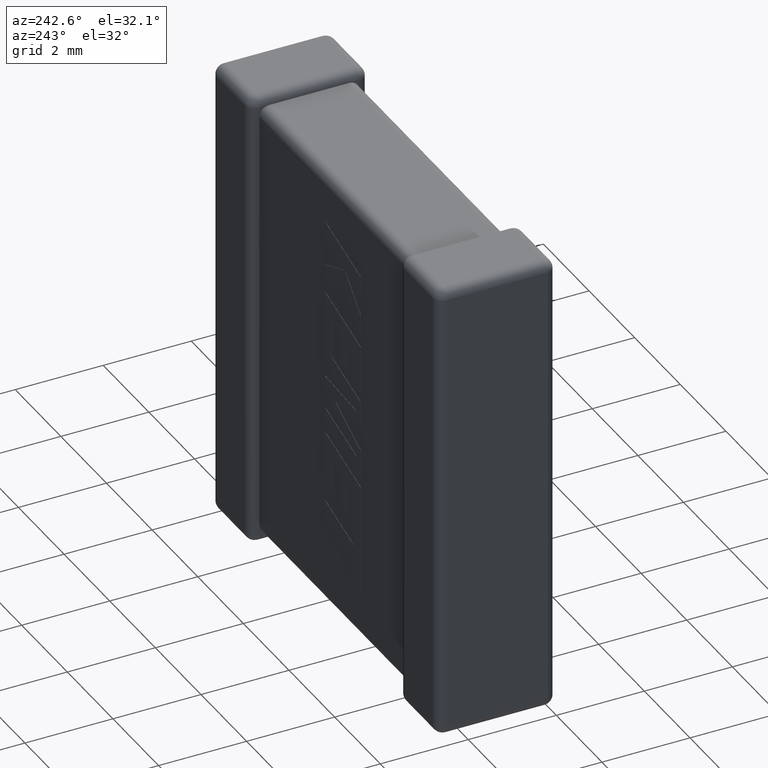
[diagram: clean part render]
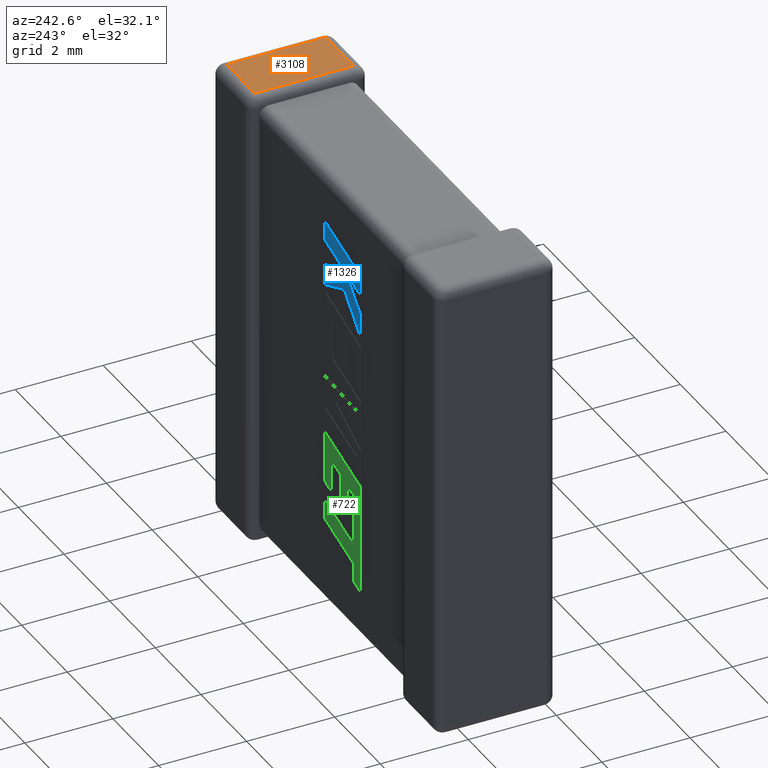
[diagram: same view with three faces highlighted in distinct colors, each labeled with its STEP entity id]
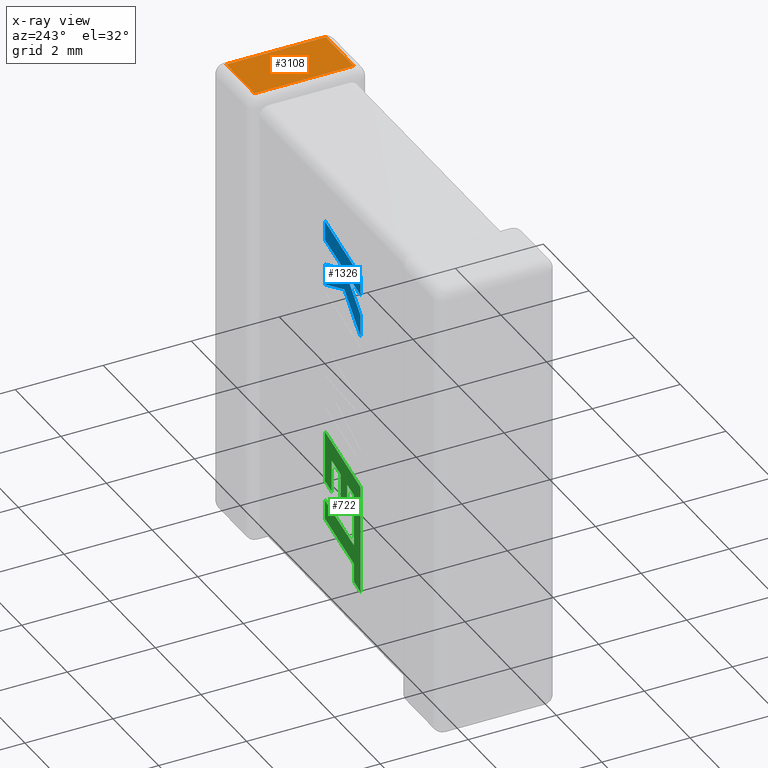
[diagram: x-ray of the same camera — body ghosted, the three highlighted faces saturated]
A machine part, auxiliary view with three faces highlighted in distinct colors.
The next image is the same camera in x-ray (body ghosted, the three faces saturated) — at least one of them is partly hidden behind the body in this view.
Their STEP definitions:

[orange] entity #3108 — the highlighted planar face has unit normal (0, 0, -1).
#343 = CARTESIAN_POINT ( 'NONE',  ( 9.679520000000000124, 0.000000000000000000, 0.000000000000000000 ) ) ;
#392 = VERTEX_POINT ( 'NONE', #2005 ) ;
#514 = ORIENTED_EDGE ( 'NONE', *, *, #2929, .T. ) ;
#691 = ORIENTED_EDGE ( 'NONE', *, *, #2475, .T. ) ;
#718 = LINE ( 'NONE', #1775, #1203 ) ;
#741 = CARTESIAN_POINT ( 'NONE',  ( 8.450480000000000658, 2.479520000000000390, 0.000000000000000000 ) ) ;
#1058 = ORIENTED_EDGE ( 'NONE', *, *, #2239, .T. ) ;
#1203 = VECTOR ( 'NONE', #3498, 1000.000000000000000 ) ;
#1226 = CARTESIAN_POINT ( 'NONE',  ( 9.900000000000000355, 0.2204799999999999538, 0.000000000000000000 ) ) ;
#1255 = ORIENTED_EDGE ( 'NONE', *, *, #2166, .T. ) ;
#1374 = DIRECTION ( 'NONE',  ( -1.000000000000000000, 0.000000000000000000, -0.000000000000000000 ) ) ;
#1405 = VERTEX_POINT ( 'NONE', #2473 ) ;
#1732 = PLANE ( 'NONE',  #1733 ) ;
#1733 = AXIS2_PLACEMENT_3D ( 'NONE', #3927, #1799, #1374 ) ;
#1775 = CARTESIAN_POINT ( 'NONE',  ( 8.450480000000000658, 0.000000000000000000, 0.000000000000000000 ) ) ;
#1799 = DIRECTION ( 'NONE',  ( 0.000000000000000000, 0.000000000000000000, -1.000000000000000000 ) ) ;
#1983 = CARTESIAN_POINT ( 'NONE',  ( 8.450480000000000658, 0.2204799999999999538, 0.000000000000000000 ) ) ;
#2005 = CARTESIAN_POINT ( 'NONE',  ( 9.679520000000000124, 2.479520000000000390, 0.000000000000000000 ) ) ;
#2151 = LINE ( 'NONE', #343, #2252 ) ;
#2166 = EDGE_CURVE ( 'NONE', #1405, #392, #2151, .T. ) ;
#2212 = VERTEX_POINT ( 'NONE', #741 ) ;
#2239 = EDGE_CURVE ( 'NONE', #2212, #2721, #718, .T. ) ;
#2252 = VECTOR ( 'NONE', #4519, 1000.000000000000000 ) ;
#2473 = CARTESIAN_POINT ( 'NONE',  ( 9.679520000000000124, 0.2204799999999999538, 0.000000000000000000 ) ) ;
#2475 = EDGE_CURVE ( 'NONE', #2721, #1405, #4394, .T. ) ;
#2510 = CARTESIAN_POINT ( 'NONE',  ( 9.900000000000000355, 2.479520000000000390, 0.000000000000000000 ) ) ;
#2600 = DIRECTION ( 'NONE',  ( -1.000000000000000000, 0.000000000000000000, 0.000000000000000000 ) ) ;
#2721 = VERTEX_POINT ( 'NONE', #1983 ) ;
#2731 = DIRECTION ( 'NONE',  ( 1.000000000000000000, -0.000000000000000000, -0.000000000000000000 ) ) ;
#2929 = EDGE_CURVE ( 'NONE', #392, #2212, #3934, .T. ) ;
#3108 = ADVANCED_FACE ( 'NONE', ( #3563 ), #1732, .F. ) ;
#3359 = VECTOR ( 'NONE', #2600, 1000.000000000000000 ) ;
#3498 = DIRECTION ( 'NONE',  ( -0.000000000000000000, -1.000000000000000000, -0.000000000000000000 ) ) ;
#3563 = FACE_OUTER_BOUND ( 'NONE', #3976, .T. ) ;
#3927 = CARTESIAN_POINT ( 'NONE',  ( 9.900000000000000355, 0.000000000000000000, 0.000000000000000000 ) ) ;
#3934 = LINE ( 'NONE', #2510, #3359 ) ;
#3976 = EDGE_LOOP ( 'NONE', ( #1058, #691, #1255, #514 ) ) ;
#4394 = LINE ( 'NONE', #1226, #4453 ) ;
#4453 = VECTOR ( 'NONE', #2731, 1000.000000000000000 ) ;
#4519 = DIRECTION ( 'NONE',  ( -0.000000000000000000, 1.000000000000000000, -0.000000000000000000 ) ) ;

[blue] entity #1326 — the highlighted planar face has unit normal (0, -1, 0).
#163 = ORIENTED_EDGE ( 'NONE', *, *, #853, .T. ) ;
#294 = CARTESIAN_POINT ( 'NONE',  ( 5.346000000000001862, 2.484519999999999840, -1.324999999999999956 ) ) ;
#321 = CARTESIAN_POINT ( 'NONE',  ( -5.111707589332566748, 2.484519999999999396, 0.02398527024839659794 ) ) ;
#382 = VECTOR ( 'NONE', #572, 1000.000000000000000 ) ;
#477 = LINE ( 'NONE', #2896, #740 ) ;
#521 = VERTEX_POINT ( 'NONE', #4059 ) ;
#524 = CARTESIAN_POINT ( 'NONE',  ( 4.499875972917930511, 2.484519999999999840, -2.010630823879264284 ) ) ;
#572 = DIRECTION ( 'NONE',  ( 5.943634068010692500E-14, 0.000000000000000000, -1.000000000000000000 ) ) ;
#650 = ORIENTED_EDGE ( 'NONE', *, *, #4068, .T. ) ;
#740 = VECTOR ( 'NONE', #1482, 1000.000000000000000 ) ;
#758 = ORIENTED_EDGE ( 'NONE', *, *, #4373, .T. ) ;
#853 = EDGE_CURVE ( 'NONE', #2395, #2823, #988, .T. ) ;
#919 = VECTOR ( 'NONE', #3038, 1000.000000000000114 ) ;
#986 = PLANE ( 'NONE',  #4497 ) ;
#988 = LINE ( 'NONE', #3023, #3253 ) ;
#1005 = VERTEX_POINT ( 'NONE', #2525 ) ;
#1070 = EDGE_CURVE ( 'NONE', #1005, #3388, #477, .T. ) ;
#1223 = VERTEX_POINT ( 'NONE', #1230 ) ;
#1230 = CARTESIAN_POINT ( 'NONE',  ( 5.346000000000001862, 2.484519999999999840, -1.324999999999999956 ) ) ;
#1242 = ORIENTED_EDGE ( 'NONE', *, *, #3431, .T. ) ;
#1276 = CARTESIAN_POINT ( 'NONE',  ( 4.452209416119982777, 2.484519999999999840, -2.026053751802103786 ) ) ;
#1287 = ORIENTED_EDGE ( 'NONE', *, *, #3542, .T. ) ;
#1326 = ADVANCED_FACE ( 'NONE', ( #4565 ), #986, .F. ) ;
#1395 = ORIENTED_EDGE ( 'NONE', *, *, #1865, .T. ) ;
#1400 = VECTOR ( 'NONE', #2840, 1000.000000000000114 ) ;
#1482 = DIRECTION ( 'NONE',  ( 0.000000000000000000, 0.000000000000000000, -1.000000000000000000 ) ) ;
#1524 = VERTEX_POINT ( 'NONE', #3350 ) ;
#1532 = CARTESIAN_POINT ( 'NONE',  ( 4.452209416119982777, 2.484519999999999840, -2.026053751802103786 ) ) ;
#1564 = ORIENTED_EDGE ( 'NONE', *, *, #2190, .T. ) ;
#1687 = VERTEX_POINT ( 'NONE', #4489 ) ;
#1731 = LINE ( 'NONE', #3860, #3225 ) ;
#1754 = DIRECTION ( 'NONE',  ( 0.000000000000000000, 0.000000000000000000, -1.000000000000000000 ) ) ;
#1765 = CARTESIAN_POINT ( 'NONE',  ( 3.787682651030821468, 2.484519999999999840, -2.216539926370781899 ) ) ;
#1776 = VECTOR ( 'NONE', #3480, 1000.000000000000000 ) ;
#1794 = DIRECTION ( 'NONE',  ( -0.9237839814038673047, 0.000000000000000000, 0.3829140317376986680 ) ) ;
#1865 = EDGE_CURVE ( 'NONE', #2823, #1687, #2318, .T. ) ;
#1970 = CARTESIAN_POINT ( 'NONE',  ( 5.346000000000030283, 2.484519999999999840, -1.768114186081184425 ) ) ;
#2000 = CARTESIAN_POINT ( 'NONE',  ( 3.787682651030821468, 2.484519999999999840, -2.688325121172840504 ) ) ;
#2063 = CARTESIAN_POINT ( 'NONE',  ( 5.346000000000030283, 2.484519999999999840, -2.824406979866518341 ) ) ;
#2098 = VERTEX_POINT ( 'NONE', #1970 ) ;
#2179 = ORIENTED_EDGE ( 'NONE', *, *, #4259, .T. ) ;
#2190 = EDGE_CURVE ( 'NONE', #2489, #4477, #1731, .T. ) ;
#2254 = VECTOR ( 'NONE', #1794, 1000.000000000000114 ) ;
#2316 = DIRECTION ( 'NONE',  ( -0.9612861490927336883, 0.000000000000000000, -0.2755520632520511715 ) ) ;
#2318 = LINE ( 'NONE', #2790, #1776 ) ;
#2356 = DIRECTION ( 'NONE',  ( -0.9612934544747571142, 0.000000000000000000, -0.2755265765475047868 ) ) ;
#2395 = VERTEX_POINT ( 'NONE', #1532 ) ;
#2489 = VERTEX_POINT ( 'NONE', #2655 ) ;
#2492 = LINE ( 'NONE', #3898, #2254 ) ;
#2525 = CARTESIAN_POINT ( 'NONE',  ( 5.346000000000030283, 2.484519999999999840, -2.350262148356555336 ) ) ;
#2563 = ORIENTED_EDGE ( 'NONE', *, *, #3439, .T. ) ;
#2655 = CARTESIAN_POINT ( 'NONE',  ( 4.499875972917911859, 2.484519999999999840, -2.473683467571165195 ) ) ;
#2790 = CARTESIAN_POINT ( 'NONE',  ( 3.787682651030821468, 2.484519999999999840, -1.772833460748218126 ) ) ;
#2823 = VERTEX_POINT ( 'NONE', #1765 ) ;
#2840 = DIRECTION ( 'NONE',  ( 0.9280290862136694185, 0.000000000000000000, -0.3725077383644825324 ) ) ;
#2882 = LINE ( 'NONE', #4268, #1400 ) ;
#2894 = VECTOR ( 'NONE', #4450, 1000.000000000000000 ) ;
#2896 = CARTESIAN_POINT ( 'NONE',  ( 5.346000000000030283, 2.484519999999999840, -2.824406979866518341 ) ) ;
#3023 = CARTESIAN_POINT ( 'NONE',  ( 3.787682651030821468, 2.484519999999999840, -2.216539926370781899 ) ) ;
#3038 = DIRECTION ( 'NONE',  ( 0.7083077534944018927, 0.000000000000000000, 0.7059037656364454127 ) ) ;
#3205 = LINE ( 'NONE', #2000, #2894 ) ;
#3225 = VECTOR ( 'NONE', #3562, 1000.000000000000000 ) ;
#3253 = VECTOR ( 'NONE', #2316, 1000.000000000000227 ) ;
#3350 = CARTESIAN_POINT ( 'NONE',  ( 4.499875972917930511, 2.484519999999999840, -2.010630823879264284 ) ) ;
#3388 = VERTEX_POINT ( 'NONE', #2063 ) ;
#3431 = EDGE_CURVE ( 'NONE', #521, #2395, #4441, .T. ) ;
#3439 = EDGE_CURVE ( 'NONE', #1687, #1223, #4493, .T. ) ;
#3480 = DIRECTION ( 'NONE',  ( 0.000000000000000000, 0.000000000000000000, 1.000000000000000000 ) ) ;
#3542 = EDGE_CURVE ( 'NONE', #3388, #2489, #2492, .T. ) ;
#3562 = DIRECTION ( 'NONE',  ( -0.6995643972270459976, 0.000000000000000000, -0.7145695586381775044 ) ) ;
#3662 = VECTOR ( 'NONE', #3761, 1000.000000000000000 ) ;
#3700 = LINE ( 'NONE', #524, #3992 ) ;
#3761 = DIRECTION ( 'NONE',  ( 0.9610992334315860974, 0.000000000000000000, 0.2762033010252007426 ) ) ;
#3860 = CARTESIAN_POINT ( 'NONE',  ( 3.787682651030821468, 2.484519999999999840, -3.201152832368971524 ) ) ;
#3898 = CARTESIAN_POINT ( 'NONE',  ( 4.499875972917911859, 2.484519999999999840, -2.473683467571165195 ) ) ;
#3992 = VECTOR ( 'NONE', #2356, 1000.000000000000114 ) ;
#4059 = CARTESIAN_POINT ( 'NONE',  ( 3.787682651030821468, 2.484519999999999840, -2.688325121172840504 ) ) ;
#4068 = EDGE_CURVE ( 'NONE', #1524, #1005, #2882, .T. ) ;
#4071 = CARTESIAN_POINT ( 'NONE',  ( 5.346000000000030283, 2.484519999999999840, -1.768114186081184425 ) ) ;
#4075 = EDGE_LOOP ( 'NONE', ( #2563, #758, #4388, #650, #4251, #1287, #1564, #2179, #1242, #163, #1395 ) ) ;
#4188 = DIRECTION ( 'NONE',  ( 0.000000000000000000, -1.000000000000000000, 0.000000000000000000 ) ) ;
#4251 = ORIENTED_EDGE ( 'NONE', *, *, #1070, .T. ) ;
#4259 = EDGE_CURVE ( 'NONE', #4477, #521, #3205, .T. ) ;
#4268 = CARTESIAN_POINT ( 'NONE',  ( 5.346000000000030283, 2.484519999999999840, -2.350262148356555336 ) ) ;
#4304 = LINE ( 'NONE', #4071, #382 ) ;
#4373 = EDGE_CURVE ( 'NONE', #1223, #2098, #4304, .T. ) ;
#4388 = ORIENTED_EDGE ( 'NONE', *, *, #4457, .T. ) ;
#4438 = CARTESIAN_POINT ( 'NONE',  ( 3.787682651030821468, 2.484519999999999840, -3.201152832368971524 ) ) ;
#4441 = LINE ( 'NONE', #1276, #919 ) ;
#4450 = DIRECTION ( 'NONE',  ( 0.000000000000000000, 0.000000000000000000, 1.000000000000000000 ) ) ;
#4457 = EDGE_CURVE ( 'NONE', #2098, #1524, #3700, .T. ) ;
#4477 = VERTEX_POINT ( 'NONE', #4438 ) ;
#4489 = CARTESIAN_POINT ( 'NONE',  ( 3.787682651030821468, 2.484519999999999840, -1.772833460748218126 ) ) ;
#4493 = LINE ( 'NONE', #294, #3662 ) ;
#4497 = AXIS2_PLACEMENT_3D ( 'NONE', #321, #4188, #1754 ) ;
#4565 = FACE_OUTER_BOUND ( 'NONE', #4075, .T. ) ;

[green] entity #722 — the highlighted planar face has unit normal (0, 1, 0).
#35 = CARTESIAN_POINT ( 'NONE',  ( 4.374199257975709187, 2.484519999999999840, -7.721622180697617743 ) ) ;
#59 = VECTOR ( 'NONE', #4374, 1000.000000000000114 ) ;
#127 = VECTOR ( 'NONE', #3998, 1000.000000000000114 ) ;
#140 = CARTESIAN_POINT ( 'NONE',  ( 4.374199257975709187, 2.484519999999999840, -7.052878394175911225 ) ) ;
#165 = CARTESIAN_POINT ( 'NONE',  ( 5.346000000000030283, 2.484519999999999840, -7.963546540205231672 ) ) ;
#170 = DIRECTION ( 'NONE',  ( -0.9615825319869173438, 0.000000000000000000, -0.2745159998572559434 ) ) ;
#197 = ORIENTED_EDGE ( 'NONE', *, *, #1526, .T. ) ;
#270 = CARTESIAN_POINT ( 'NONE',  ( 4.374199257975709187, 2.484519999999999840, -7.721622180697617743 ) ) ;
#312 = CARTESIAN_POINT ( 'NONE',  ( 5.346000000000030283, 2.484519999999999840, -6.332184694268351954 ) ) ;
#414 = ORIENTED_EDGE ( 'NONE', *, *, #3404, .T. ) ;
#440 = VECTOR ( 'NONE', #3722, 1000.000000000000000 ) ;
#482 = VERTEX_POINT ( 'NONE', #2688 ) ;
#578 = EDGE_CURVE ( 'NONE', #3890, #3087, #1267, .T. ) ;
#608 = ORIENTED_EDGE ( 'NONE', *, *, #3240, .T. ) ;
#625 = CARTESIAN_POINT ( 'NONE',  ( 3.787682651030821468, 2.484519999999999840, -6.780411429052668026 ) ) ;
#689 = EDGE_CURVE ( 'NONE', #1610, #3834, #2904, .T. ) ;
#702 = ORIENTED_EDGE ( 'NONE', *, *, #1706, .T. ) ;
#722 = ADVANCED_FACE ( 'NONE', ( #1541 ), #835, .T. ) ;
#746 = EDGE_CURVE ( 'NONE', #3834, #3890, #4020, .T. ) ;
#750 = VECTOR ( 'NONE', #4216, 999.9999999999998863 ) ;
#759 = CARTESIAN_POINT ( 'NONE',  ( 4.086361485415988426, 2.484519999999999840, -7.851326388015599456 ) ) ;
#816 = ORIENTED_EDGE ( 'NONE', *, *, #689, .T. ) ;
#835 = PLANE ( 'NONE',  #1914 ) ;
#842 = ORIENTED_EDGE ( 'NONE', *, *, #1872, .T. ) ;
#876 = CARTESIAN_POINT ( 'NONE',  ( 4.088564760655455821, 2.484519999999999840, -8.325073208512909773 ) ) ;
#878 = EDGE_CURVE ( 'NONE', #2330, #2052, #4110, .T. ) ;
#890 = LINE ( 'NONE', #3062, #1846 ) ;
#915 = DIRECTION ( 'NONE',  ( -0.9620200793798762140, 0.000000000000000000, -0.2729786930695082825 ) ) ;
#933 = DIRECTION ( 'NONE',  ( -0.9610876102172832836, 0.000000000000000000, -0.2762437428917279836 ) ) ;
#939 = CARTESIAN_POINT ( 'NONE',  ( 3.787682651030821468, 2.484519999999999840, -6.780411429052668026 ) ) ;
#990 = EDGE_CURVE ( 'NONE', #3087, #1741, #2114, .T. ) ;
#1017 = CARTESIAN_POINT ( 'NONE',  ( 4.374199257975709187, 2.484519999999999840, -7.052878394175911225 ) ) ;
#1056 = LINE ( 'NONE', #2176, #750 ) ;
#1101 = EDGE_CURVE ( 'NONE', #3975, #482, #1560, .T. ) ;
#1112 = CARTESIAN_POINT ( 'NONE',  ( 4.662226559588931174, 2.484519999999999840, -7.639338142403540921 ) ) ;
#1128 = VECTOR ( 'NONE', #1658, 1000.000000000000114 ) ;
#1139 = LINE ( 'NONE', #4369, #3944 ) ;
#1151 = EDGE_CURVE ( 'NONE', #2569, #4325, #3332, .T. ) ;
#1170 = VECTOR ( 'NONE', #170, 1000.000000000000114 ) ;
#1234 = VECTOR ( 'NONE', #3751, 1000.000000000000000 ) ;
#1237 = LINE ( 'NONE', #2644, #2661 ) ;
#1267 = LINE ( 'NONE', #2324, #3109 ) ;
#1298 = LINE ( 'NONE', #625, #1128 ) ;
#1340 = CARTESIAN_POINT ( 'NONE',  ( 4.084352477455281516, 2.484519999999999840, -7.137218822693348841 ) ) ;
#1353 = VECTOR ( 'NONE', #2875, 1000.000000000000000 ) ;
#1457 = VECTOR ( 'NONE', #3308, 1000.000000000000000 ) ;
#1526 = EDGE_CURVE ( 'NONE', #2052, #1998, #3036, .T. ) ;
#1541 = FACE_OUTER_BOUND ( 'NONE', #3070, .T. ) ;
#1554 = VERTEX_POINT ( 'NONE', #939 ) ;
#1560 = LINE ( 'NONE', #2240, #1457 ) ;
#1565 = CARTESIAN_POINT ( 'NONE',  ( -5.111707589332566748, 2.484519999999999396, 0.02398527024839659794 ) ) ;
#1583 = EDGE_CURVE ( 'NONE', #482, #2330, #890, .T. ) ;
#1591 = EDGE_CURVE ( 'NONE', #1998, #2348, #2990, .T. ) ;
#1610 = VERTEX_POINT ( 'NONE', #4101 ) ;
#1644 = ORIENTED_EDGE ( 'NONE', *, *, #1591, .T. ) ;
#1658 = DIRECTION ( 'NONE',  ( 0.9610348236706638403, 0.000000000000000000, 0.2764273280489756290 ) ) ;
#1706 = EDGE_CURVE ( 'NONE', #4325, #1610, #1237, .T. ) ;
#1741 = VERTEX_POINT ( 'NONE', #3665 ) ;
#1846 = VECTOR ( 'NONE', #915, 1000.000000000000114 ) ;
#1872 = EDGE_CURVE ( 'NONE', #1741, #3055, #1056, .T. ) ;
#1886 = ORIENTED_EDGE ( 'NONE', *, *, #1583, .T. ) ;
#1914 = AXIS2_PLACEMENT_3D ( 'NONE', #1565, #2616, #2268 ) ;
#1987 = CARTESIAN_POINT ( 'NONE',  ( 4.662226559588931174, 2.484519999999999840, -6.970689120408272821 ) ) ;
#1998 = VERTEX_POINT ( 'NONE', #2944 ) ;
#2015 = CARTESIAN_POINT ( 'NONE',  ( 5.049472320368076694, 2.484519999999999840, -6.860136823881929580 ) ) ;
#2052 = VERTEX_POINT ( 'NONE', #2546 ) ;
#2114 = LINE ( 'NONE', #3522, #4494 ) ;
#2152 = LINE ( 'NONE', #35, #1353 ) ;
#2176 = CARTESIAN_POINT ( 'NONE',  ( 4.088598631981581022, 2.484519999999999840, -9.195527347898662995 ) ) ;
#2224 = ORIENTED_EDGE ( 'NONE', *, *, #1151, .T. ) ;
#2240 = CARTESIAN_POINT ( 'NONE',  ( 5.346000000000030283, 2.484519999999999840, -6.332184694268351954 ) ) ;
#2249 = VECTOR ( 'NONE', #2443, 1000.000000000000114 ) ;
#2259 = CARTESIAN_POINT ( 'NONE',  ( 5.049472320368076694, 2.484519999999999840, -7.593680593572097237 ) ) ;
#2268 = DIRECTION ( 'NONE',  ( 0.000000000000000000, 0.000000000000000000, 1.000000000000000000 ) ) ;
#2281 = LINE ( 'NONE', #2354, #4455 ) ;
#2324 = CARTESIAN_POINT ( 'NONE',  ( 5.346000000000030283, 2.484519999999999840, -8.407452011333285569 ) ) ;
#2330 = VERTEX_POINT ( 'NONE', #2259 ) ;
#2346 = CARTESIAN_POINT ( 'NONE',  ( 5.049472320368076694, 2.484519999999999840, -7.593680593572097237 ) ) ;
#2348 = VERTEX_POINT ( 'NONE', #1112 ) ;
#2354 = CARTESIAN_POINT ( 'NONE',  ( 4.662226559588931174, 2.484519999999999840, -7.639338142403540921 ) ) ;
#2437 = DIRECTION ( 'NONE',  ( 7.938847109757215918E-05, 0.000000000000000000, -0.9999999968487351953 ) ) ;
#2441 = VERTEX_POINT ( 'NONE', #270 ) ;
#2443 = DIRECTION ( 'NONE',  ( -0.9601763114346048011, 0.000000000000000000, -0.2793947940814874298 ) ) ;
#2509 = VECTOR ( 'NONE', #3338, 1000.000000000000000 ) ;
#2546 = CARTESIAN_POINT ( 'NONE',  ( 5.049472320368076694, 2.484519999999999840, -6.860136823881929580 ) ) ;
#2569 = VERTEX_POINT ( 'NONE', #1340 ) ;
#2603 = CARTESIAN_POINT ( 'NONE',  ( 5.346000000000030283, 2.484519999999999840, -8.407452011333285569 ) ) ;
#2616 = DIRECTION ( 'NONE',  ( 0.000000000000000000, 1.000000000000000000, 0.000000000000000000 ) ) ;
#2641 = VERTEX_POINT ( 'NONE', #140 ) ;
#2644 = CARTESIAN_POINT ( 'NONE',  ( 4.086361485415988426, 2.484519999999999840, -7.851326388015599456 ) ) ;
#2661 = VECTOR ( 'NONE', #2665, 1000.000000000000114 ) ;
#2665 = DIRECTION ( 'NONE',  ( 0.004650693823668812857, 0.000000000000000000, -0.9999891854650021505 ) ) ;
#2688 = CARTESIAN_POINT ( 'NONE',  ( 5.346000000000030283, 2.484519999999999840, -7.509539170560384669 ) ) ;
#2796 = LINE ( 'NONE', #1017, #2249 ) ;
#2875 = DIRECTION ( 'NONE',  ( 0.000000000000000000, 0.000000000000000000, 1.000000000000000000 ) ) ;
#2892 = CARTESIAN_POINT ( 'NONE',  ( 4.088564760659324726, 2.484519999999999840, -8.768874438661111270 ) ) ;
#2904 = LINE ( 'NONE', #876, #127 ) ;
#2944 = CARTESIAN_POINT ( 'NONE',  ( 4.662226559588931174, 2.484519999999999840, -6.970689120408272821 ) ) ;
#2963 = ORIENTED_EDGE ( 'NONE', *, *, #990, .T. ) ;
#2990 = LINE ( 'NONE', #1987, #440 ) ;
#2997 = CARTESIAN_POINT ( 'NONE',  ( 4.084352477455281516, 2.484519999999999840, -7.137218822693348841 ) ) ;
#3036 = LINE ( 'NONE', #2015, #1170 ) ;
#3055 = VERTEX_POINT ( 'NONE', #4039 ) ;
#3062 = CARTESIAN_POINT ( 'NONE',  ( 5.346000000000030283, 2.484519999999999840, -7.509539170560384669 ) ) ;
#3070 = EDGE_LOOP ( 'NONE', ( #2224, #702, #816, #3820, #4024, #2963, #842, #608, #414, #3231, #1886, #3120, #197, #1644, #4265, #4070, #3301 ) ) ;
#3087 = VERTEX_POINT ( 'NONE', #2892 ) ;
#3109 = VECTOR ( 'NONE', #933, 1000.000000000000114 ) ;
#3120 = ORIENTED_EDGE ( 'NONE', *, *, #878, .T. ) ;
#3189 = EDGE_CURVE ( 'NONE', #2441, #2641, #2152, .T. ) ;
#3231 = ORIENTED_EDGE ( 'NONE', *, *, #1101, .T. ) ;
#3240 = EDGE_CURVE ( 'NONE', #3055, #1554, #1139, .T. ) ;
#3264 = DIRECTION ( 'NONE',  ( 0.000000000000000000, 0.000000000000000000, 1.000000000000000000 ) ) ;
#3301 = ORIENTED_EDGE ( 'NONE', *, *, #3990, .T. ) ;
#3308 = DIRECTION ( 'NONE',  ( 0.000000000000000000, 0.000000000000000000, -1.000000000000000000 ) ) ;
#3332 = LINE ( 'NONE', #2997, #59 ) ;
#3338 = DIRECTION ( 'NONE',  ( 0.000000000000000000, 0.000000000000000000, -1.000000000000000000 ) ) ;
#3348 = DIRECTION ( 'NONE',  ( -0.9615323037684311291, 0.000000000000000000, -0.2746918797667187162 ) ) ;
#3404 = EDGE_CURVE ( 'NONE', #1554, #3975, #1298, .T. ) ;
#3522 = CARTESIAN_POINT ( 'NONE',  ( 4.088564760659324726, 2.484519999999999840, -8.768874438661111270 ) ) ;
#3601 = EDGE_CURVE ( 'NONE', #2348, #2441, #2281, .T. ) ;
#3665 = CARTESIAN_POINT ( 'NONE',  ( 4.088598631981581022, 2.484519999999999840, -9.195527347898662995 ) ) ;
#3685 = CARTESIAN_POINT ( 'NONE',  ( 5.346000000000030283, 2.484519999999999840, -7.963546540205231672 ) ) ;
#3722 = DIRECTION ( 'NONE',  ( 0.000000000000000000, 0.000000000000000000, -1.000000000000000000 ) ) ;
#3751 = DIRECTION ( 'NONE',  ( 0.000000000000000000, 0.000000000000000000, 1.000000000000000000 ) ) ;
#3820 = ORIENTED_EDGE ( 'NONE', *, *, #746, .T. ) ;
#3834 = VERTEX_POINT ( 'NONE', #165 ) ;
#3890 = VERTEX_POINT ( 'NONE', #2603 ) ;
#3944 = VECTOR ( 'NONE', #3264, 1000.000000000000000 ) ;
#3975 = VERTEX_POINT ( 'NONE', #312 ) ;
#3990 = EDGE_CURVE ( 'NONE', #2641, #2569, #2796, .T. ) ;
#3998 = DIRECTION ( 'NONE',  ( 0.9610664548998939516, 0.000000000000000000, 0.2763173343569854112 ) ) ;
#4020 = LINE ( 'NONE', #3685, #2509 ) ;
#4024 = ORIENTED_EDGE ( 'NONE', *, *, #578, .T. ) ;
#4039 = CARTESIAN_POINT ( 'NONE',  ( 3.787682651030821468, 2.484519999999999840, -9.282005397594199181 ) ) ;
#4070 = ORIENTED_EDGE ( 'NONE', *, *, #3189, .T. ) ;
#4101 = CARTESIAN_POINT ( 'NONE',  ( 4.088564760655455821, 2.484519999999999840, -8.325073208512909773 ) ) ;
#4110 = LINE ( 'NONE', #2346, #1234 ) ;
#4216 = DIRECTION ( 'NONE',  ( -0.9610992334305259455, 0.000000000000000000, -0.2762033010288897916 ) ) ;
#4265 = ORIENTED_EDGE ( 'NONE', *, *, #3601, .T. ) ;
#4325 = VERTEX_POINT ( 'NONE', #759 ) ;
#4369 = CARTESIAN_POINT ( 'NONE',  ( 3.787682651030821468, 2.484519999999999840, -9.282005397594199181 ) ) ;
#4374 = DIRECTION ( 'NONE',  ( 0.002813301676014988168, 0.000000000000000000, -0.9999960426590095430 ) ) ;
#4455 = VECTOR ( 'NONE', #3348, 1000.000000000000114 ) ;
#4494 = VECTOR ( 'NONE', #2437, 1000.000000000000227 ) ;